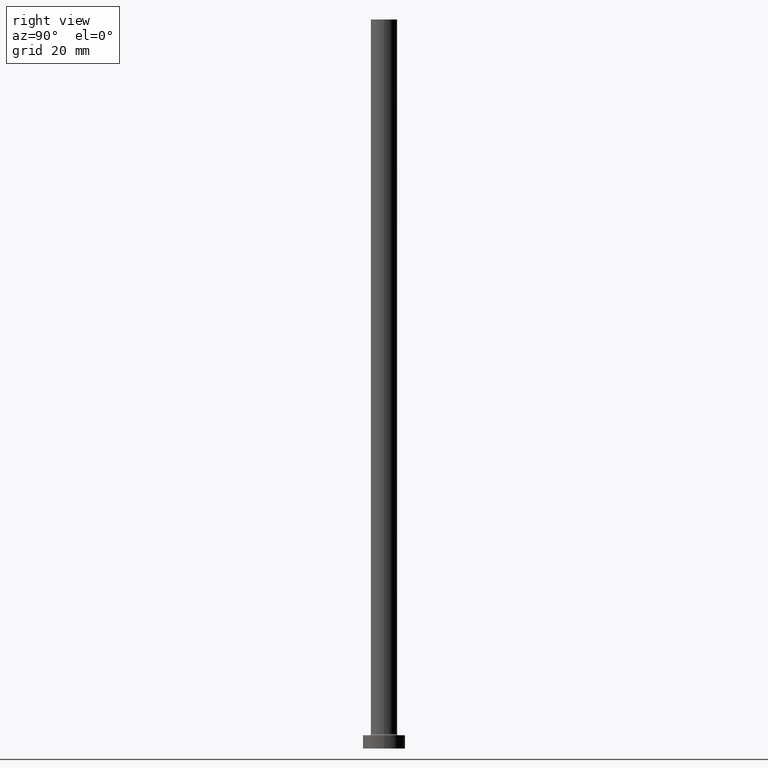
[diagram: clean part render]
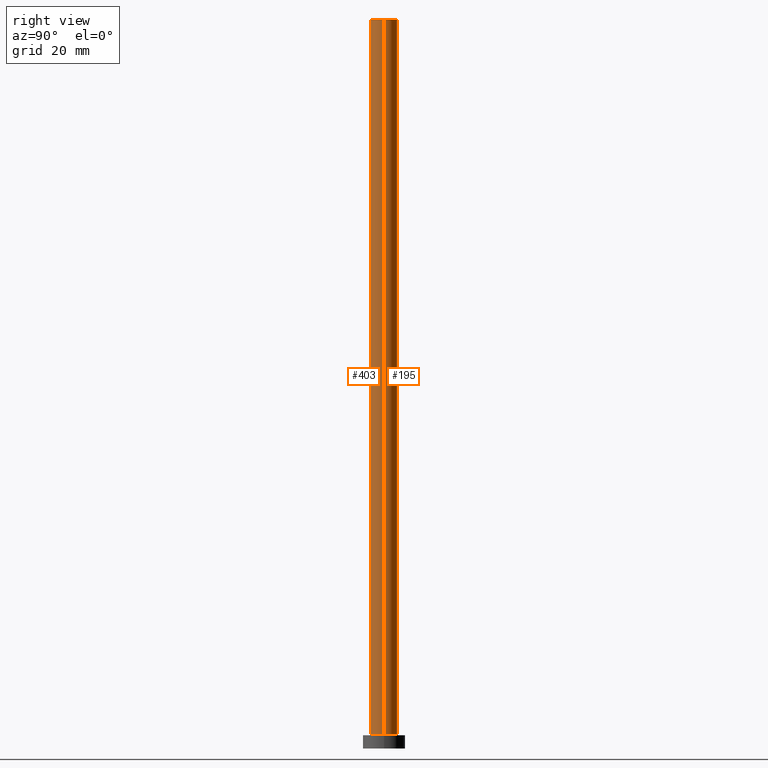
[diagram: same view with one multi-face feature highlighted, each face labeled with its STEP entity id]
A machine part, right view. The highlighted faces form ONE feature: a constant-radius fillet chain: 2 tangent blend faces with common blend radius 5 mm. The faces share edges in the B-rep.
Their STEP definitions:
[1] entity #403 (Cylinder):
#2 = DIRECTION ( 'NONE',  ( 1.000000000000000000, 0.000000000000000000, 0.000000000000000000 ) ) ;
#13 = VECTOR ( 'NONE', #212, 1000.000000000000000 ) ;
#24 = EDGE_CURVE ( 'NONE', #26, #180, #424, .T. ) ;
#26 = VERTEX_POINT ( 'NONE', #429 ) ;
#36 = CARTESIAN_POINT ( 'NONE',  ( 5.000000000000000000, 6.123233995736766282E-16, 5.500000000000005329 ) ) ;
#58 = EDGE_CURVE ( 'NONE', #26, #182, #333, .T. ) ;
#87 = CARTESIAN_POINT ( 'NONE',  ( 5.000000000000000000, 6.123233995736766282E-16, 275.0000000000000000 ) ) ;
#97 = ORIENTED_EDGE ( 'NONE', *, *, #200, .F. ) ;
#129 = CYLINDRICAL_SURFACE ( 'NONE', #346, 5.000000000000000000 ) ;
#133 = ORIENTED_EDGE ( 'NONE', *, *, #24, .T. ) ;
#176 = CIRCLE ( 'NONE', #448, 5.000000000000000000 ) ;
#180 = VERTEX_POINT ( 'NONE', #436 ) ;
#182 = VERTEX_POINT ( 'NONE', #401 ) ;
#200 = EDGE_CURVE ( 'NONE', #182, #444, #405, .T. ) ;
#212 = DIRECTION ( 'NONE',  ( -0.000000000000000000, -0.000000000000000000, -1.000000000000000000 ) ) ;
#216 = VECTOR ( 'NONE', #369, 1000.000000000000000 ) ;
#219 = CARTESIAN_POINT ( 'NONE',  ( 0.000000000000000000, 0.000000000000000000, 275.0000000000000000 ) ) ;
#232 = DIRECTION ( 'NONE',  ( 1.000000000000000000, 0.000000000000000000, 0.000000000000000000 ) ) ;
#234 = DIRECTION ( 'NONE',  ( -1.000000000000000000, 0.000000000000000000, 0.000000000000000000 ) ) ;
#257 = EDGE_LOOP ( 'NONE', ( #97, #416, #133, #385 ) ) ;
#269 = DIRECTION ( 'NONE',  ( 0.000000000000000000, 0.000000000000000000, 1.000000000000000000 ) ) ;
#271 = DIRECTION ( 'NONE',  ( -0.000000000000000000, -0.000000000000000000, -1.000000000000000000 ) ) ;
#308 = CARTESIAN_POINT ( 'NONE',  ( 0.000000000000000000, 0.000000000000000000, 5.500000000000005329 ) ) ;
#333 = CIRCLE ( 'NONE', #425, 5.000000000000000000 ) ;
#346 = AXIS2_PLACEMENT_3D ( 'NONE', #443, #271, #234 ) ;
#369 = DIRECTION ( 'NONE',  ( -0.000000000000000000, -0.000000000000000000, -1.000000000000000000 ) ) ;
#371 = FACE_OUTER_BOUND ( 'NONE', #257, .T. ) ;
#385 = ORIENTED_EDGE ( 'NONE', *, *, #394, .T. ) ;
#394 = EDGE_CURVE ( 'NONE', #180, #444, #176, .T. ) ;
#401 = CARTESIAN_POINT ( 'NONE',  ( 5.000000000000000000, 6.123233995736766282E-16, 275.0000000000000000 ) ) ;
#403 = ADVANCED_FACE ( 'NONE', ( #371 ), #129, .T. ) ;
#405 = LINE ( 'NONE', #87, #216 ) ;
#416 = ORIENTED_EDGE ( 'NONE', *, *, #58, .F. ) ;
#424 = LINE ( 'NONE', #461, #13 ) ;
#425 = AXIS2_PLACEMENT_3D ( 'NONE', #219, #427, #2 ) ;
#427 = DIRECTION ( 'NONE',  ( 0.000000000000000000, 0.000000000000000000, 1.000000000000000000 ) ) ;
#429 = CARTESIAN_POINT ( 'NONE',  ( -5.000000000000000000, 0.000000000000000000, 275.0000000000000000 ) ) ;
#436 = CARTESIAN_POINT ( 'NONE',  ( -5.000000000000000000, 0.000000000000000000, 5.500000000000005329 ) ) ;
#443 = CARTESIAN_POINT ( 'NONE',  ( 0.000000000000000000, 0.000000000000000000, 275.0000000000000000 ) ) ;
#444 = VERTEX_POINT ( 'NONE', #36 ) ;
#448 = AXIS2_PLACEMENT_3D ( 'NONE', #308, #269, #232 ) ;
#461 = CARTESIAN_POINT ( 'NONE',  ( -5.000000000000000000, 0.000000000000000000, 275.0000000000000000 ) ) ;
[2] entity #195 (Cylinder):
#13 = VECTOR ( 'NONE', #212, 1000.000000000000000 ) ;
#24 = EDGE_CURVE ( 'NONE', #26, #180, #424, .T. ) ;
#26 = VERTEX_POINT ( 'NONE', #429 ) ;
#28 = DIRECTION ( 'NONE',  ( 1.000000000000000000, 0.000000000000000000, 0.000000000000000000 ) ) ;
#36 = CARTESIAN_POINT ( 'NONE',  ( 5.000000000000000000, 6.123233995736766282E-16, 5.500000000000005329 ) ) ;
#42 = ORIENTED_EDGE ( 'NONE', *, *, #24, .F. ) ;
#59 = DIRECTION ( 'NONE',  ( 1.000000000000000000, 0.000000000000000000, 0.000000000000000000 ) ) ;
#69 = DIRECTION ( 'NONE',  ( 0.000000000000000000, 0.000000000000000000, 1.000000000000000000 ) ) ;
#87 = CARTESIAN_POINT ( 'NONE',  ( 5.000000000000000000, 6.123233995736766282E-16, 275.0000000000000000 ) ) ;
#92 = CARTESIAN_POINT ( 'NONE',  ( 0.000000000000000000, 0.000000000000000000, 275.0000000000000000 ) ) ;
#167 = AXIS2_PLACEMENT_3D ( 'NONE', #92, #334, #294 ) ;
#180 = VERTEX_POINT ( 'NONE', #436 ) ;
#182 = VERTEX_POINT ( 'NONE', #401 ) ;
#185 = AXIS2_PLACEMENT_3D ( 'NONE', #277, #69, #28 ) ;
#195 = ADVANCED_FACE ( 'NONE', ( #264 ), #288, .T. ) ;
#200 = EDGE_CURVE ( 'NONE', #182, #444, #405, .T. ) ;
#209 = ORIENTED_EDGE ( 'NONE', *, *, #379, .T. ) ;
#212 = DIRECTION ( 'NONE',  ( -0.000000000000000000, -0.000000000000000000, -1.000000000000000000 ) ) ;
#216 = VECTOR ( 'NONE', #369, 1000.000000000000000 ) ;
#246 = ORIENTED_EDGE ( 'NONE', *, *, #268, .F. ) ;
#264 = FACE_OUTER_BOUND ( 'NONE', #315, .T. ) ;
#268 = EDGE_CURVE ( 'NONE', #182, #26, #430, .T. ) ;
#274 = CARTESIAN_POINT ( 'NONE',  ( 0.000000000000000000, 0.000000000000000000, 275.0000000000000000 ) ) ;
#277 = CARTESIAN_POINT ( 'NONE',  ( 0.000000000000000000, 0.000000000000000000, 5.500000000000005329 ) ) ;
#288 = CYLINDRICAL_SURFACE ( 'NONE', #167, 5.000000000000000000 ) ;
#294 = DIRECTION ( 'NONE',  ( -1.000000000000000000, 0.000000000000000000, 0.000000000000000000 ) ) ;
#315 = EDGE_LOOP ( 'NONE', ( #246, #353, #209, #42 ) ) ;
#334 = DIRECTION ( 'NONE',  ( -0.000000000000000000, -0.000000000000000000, -1.000000000000000000 ) ) ;
#335 = DIRECTION ( 'NONE',  ( 0.000000000000000000, 0.000000000000000000, 1.000000000000000000 ) ) ;
#353 = ORIENTED_EDGE ( 'NONE', *, *, #200, .T. ) ;
#368 = CIRCLE ( 'NONE', #185, 5.000000000000000000 ) ;
#369 = DIRECTION ( 'NONE',  ( -0.000000000000000000, -0.000000000000000000, -1.000000000000000000 ) ) ;
#379 = EDGE_CURVE ( 'NONE', #444, #180, #368, .T. ) ;
#401 = CARTESIAN_POINT ( 'NONE',  ( 5.000000000000000000, 6.123233995736766282E-16, 275.0000000000000000 ) ) ;
#405 = LINE ( 'NONE', #87, #216 ) ;
#413 = AXIS2_PLACEMENT_3D ( 'NONE', #274, #335, #59 ) ;
#424 = LINE ( 'NONE', #461, #13 ) ;
#429 = CARTESIAN_POINT ( 'NONE',  ( -5.000000000000000000, 0.000000000000000000, 275.0000000000000000 ) ) ;
#430 = CIRCLE ( 'NONE', #413, 5.000000000000000000 ) ;
#436 = CARTESIAN_POINT ( 'NONE',  ( -5.000000000000000000, 0.000000000000000000, 5.500000000000005329 ) ) ;
#444 = VERTEX_POINT ( 'NONE', #36 ) ;
#461 = CARTESIAN_POINT ( 'NONE',  ( -5.000000000000000000, 0.000000000000000000, 275.0000000000000000 ) ) ;